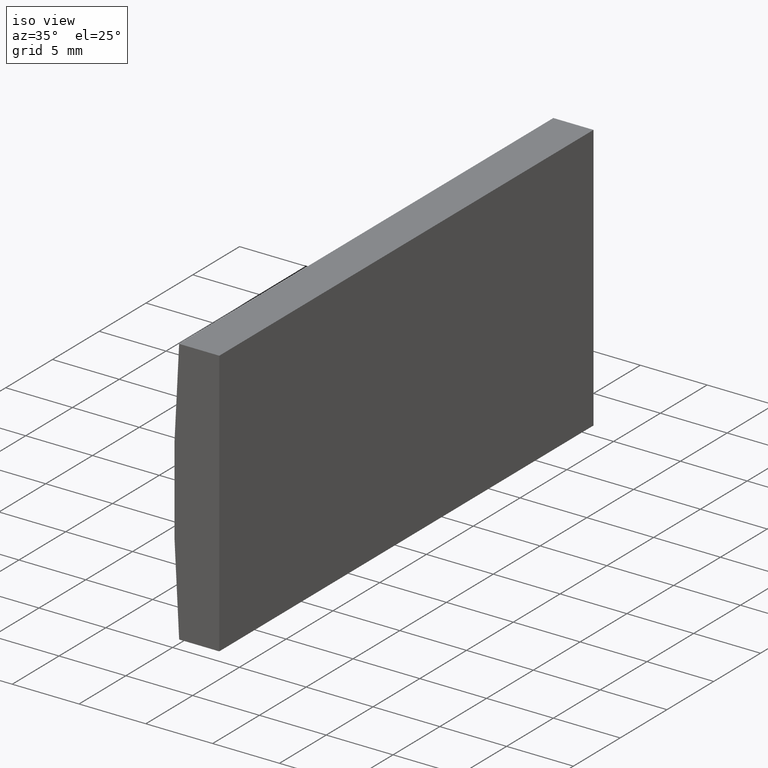
[diagram: clean part render]
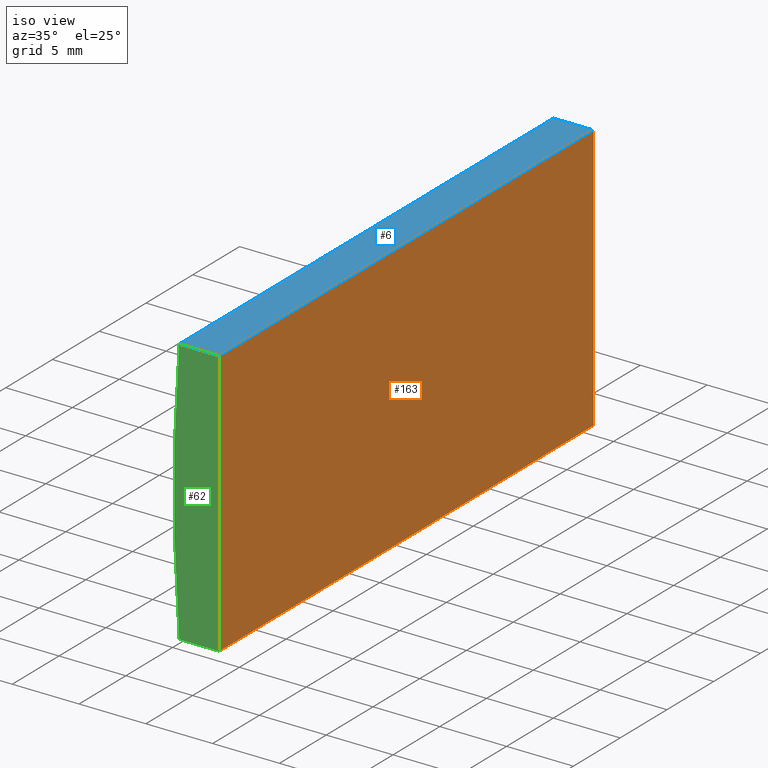
[diagram: same view with three faces highlighted in distinct colors, each labeled with its STEP entity id]
A machine part, iso view with three faces highlighted in distinct colors.
Their STEP definitions:

[orange] entity #163 — the highlighted planar face has unit normal (-1, 0, 0).
#11 = CARTESIAN_POINT ( 'NONE',  ( -121.5047956651487300, 40.00000000000000000, -9.999999999999985800 ) ) ;
#20 = VERTEX_POINT ( 'NONE', #109 ) ;
#23 = LINE ( 'NONE', #78, #187 ) ;
#46 = EDGE_LOOP ( 'NONE', ( #177, #82, #192, #158 ) ) ;
#51 = VERTEX_POINT ( 'NONE', #81 ) ;
#52 = CARTESIAN_POINT ( 'NONE',  ( -121.5047956651487300, 0.0000000000000000000, -9.999999999999985800 ) ) ;
#61 = VECTOR ( 'NONE', #183, 1000.000000000000000 ) ;
#65 = CARTESIAN_POINT ( 'NONE',  ( -121.5047956651487300, 40.00000000000000000, -9.999999999999985800 ) ) ;
#66 = VERTEX_POINT ( 'NONE', #52 ) ;
#72 = VECTOR ( 'NONE', #73, 1000.000000000000000 ) ;
#73 = DIRECTION ( 'NONE',  ( -0.0000000000000000000, -1.000000000000000000, -0.0000000000000000000 ) ) ;
#74 = PLANE ( 'NONE',  #160 ) ;
#76 = CARTESIAN_POINT ( 'NONE',  ( -121.5047956651487300, 0.0000000000000000000, -9.999999999999985800 ) ) ;
#78 = CARTESIAN_POINT ( 'NONE',  ( -121.5047956651487300, 40.00000000000000000, 10.00000000000000000 ) ) ;
#79 = VECTOR ( 'NONE', #99, 1000.000000000000000 ) ;
#81 = CARTESIAN_POINT ( 'NONE',  ( -121.5047956651487300, 40.00000000000000000, 10.00000000000000000 ) ) ;
#82 = ORIENTED_EDGE ( 'NONE', *, *, #98, .F. ) ;
#95 = VERTEX_POINT ( 'NONE', #65 ) ;
#98 = EDGE_CURVE ( 'NONE', #95, #66, #176, .T. ) ;
#99 = DIRECTION ( 'NONE',  ( -0.0000000000000000000, -0.0000000000000000000, -1.000000000000000000 ) ) ;
#100 = DIRECTION ( 'NONE',  ( 0.0000000000000000000, 0.0000000000000000000, 1.000000000000000000 ) ) ;
#106 = LINE ( 'NONE', #11, #79 ) ;
#109 = CARTESIAN_POINT ( 'NONE',  ( -121.5047956651487300, 0.0000000000000000000, 10.00000000000000000 ) ) ;
#122 = DIRECTION ( 'NONE',  ( -1.000000000000000000, 0.0000000000000000000, 0.0000000000000000000 ) ) ;
#126 = CARTESIAN_POINT ( 'NONE',  ( -121.5047956651487300, 40.00000000000000000, -9.999999999999985800 ) ) ;
#138 = EDGE_CURVE ( 'NONE', #51, #95, #106, .T. ) ;
#139 = CARTESIAN_POINT ( 'NONE',  ( -121.5047956651487300, 40.00000000000000000, -9.999999999999985800 ) ) ;
#140 = FACE_OUTER_BOUND ( 'NONE', #46, .T. ) ;
#142 = DIRECTION ( 'NONE',  ( -0.0000000000000000000, -1.000000000000000000, -0.0000000000000000000 ) ) ;
#158 = ORIENTED_EDGE ( 'NONE', *, *, #201, .T. ) ;
#160 = AXIS2_PLACEMENT_3D ( 'NONE', #139, #122, #100 ) ;
#162 = LINE ( 'NONE', #76, #61 ) ;
#163 = ADVANCED_FACE ( 'NONE', ( #140 ), #74, .F. ) ;
#169 = EDGE_CURVE ( 'NONE', #20, #66, #162, .T. ) ;
#176 = LINE ( 'NONE', #126, #72 ) ;
#177 = ORIENTED_EDGE ( 'NONE', *, *, #169, .T. ) ;
#183 = DIRECTION ( 'NONE',  ( -0.0000000000000000000, -0.0000000000000000000, -1.000000000000000000 ) ) ;
#187 = VECTOR ( 'NONE', #142, 1000.000000000000000 ) ;
#192 = ORIENTED_EDGE ( 'NONE', *, *, #138, .F. ) ;
#201 = EDGE_CURVE ( 'NONE', #51, #20, #23, .T. ) ;

[blue] entity #6 — the highlighted planar face has unit normal (0, 0, -1).
#4 = CARTESIAN_POINT ( 'NONE',  ( -124.5073678108264800, 0.0000000000000000000, 10.00000000000000000 ) ) ;
#5 = EDGE_LOOP ( 'NONE', ( #71, #97, #165, #143 ) ) ;
#6 = ADVANCED_FACE ( 'NONE', ( #111 ), #149, .F. ) ;
#9 = VERTEX_POINT ( 'NONE', #43 ) ;
#10 = LINE ( 'NONE', #4, #156 ) ;
#20 = VERTEX_POINT ( 'NONE', #109 ) ;
#23 = LINE ( 'NONE', #78, #187 ) ;
#36 = CARTESIAN_POINT ( 'NONE',  ( -124.5073678108264800, 40.00000000000000000, 10.00000000000000000 ) ) ;
#37 = CARTESIAN_POINT ( 'NONE',  ( -124.5073678108264800, 40.00000000000000000, 10.00000000000000000 ) ) ;
#43 = CARTESIAN_POINT ( 'NONE',  ( -124.5073678108264800, 0.0000000000000000000, 10.00000000000000000 ) ) ;
#45 = EDGE_CURVE ( 'NONE', #9, #20, #10, .T. ) ;
#51 = VERTEX_POINT ( 'NONE', #81 ) ;
#56 = DIRECTION ( 'NONE',  ( -0.0000000000000000000, -1.000000000000000000, -0.0000000000000000000 ) ) ;
#59 = DIRECTION ( 'NONE',  ( 0.0000000000000000000, 0.0000000000000000000, -1.000000000000000000 ) ) ;
#70 = LINE ( 'NONE', #37, #133 ) ;
#71 = ORIENTED_EDGE ( 'NONE', *, *, #45, .T. ) ;
#78 = CARTESIAN_POINT ( 'NONE',  ( -121.5047956651487300, 40.00000000000000000, 10.00000000000000000 ) ) ;
#81 = CARTESIAN_POINT ( 'NONE',  ( -121.5047956651487300, 40.00000000000000000, 10.00000000000000000 ) ) ;
#83 = DIRECTION ( 'NONE',  ( 1.000000000000000000, 0.0000000000000000000, 0.0000000000000000000 ) ) ;
#97 = ORIENTED_EDGE ( 'NONE', *, *, #201, .F. ) ;
#109 = CARTESIAN_POINT ( 'NONE',  ( -121.5047956651487300, 0.0000000000000000000, 10.00000000000000000 ) ) ;
#111 = FACE_OUTER_BOUND ( 'NONE', #5, .T. ) ;
#121 = EDGE_CURVE ( 'NONE', #175, #9, #70, .T. ) ;
#133 = VECTOR ( 'NONE', #56, 1000.000000000000000 ) ;
#142 = DIRECTION ( 'NONE',  ( -0.0000000000000000000, -1.000000000000000000, -0.0000000000000000000 ) ) ;
#143 = ORIENTED_EDGE ( 'NONE', *, *, #121, .T. ) ;
#144 = AXIS2_PLACEMENT_3D ( 'NONE', #174, #59, #199 ) ;
#149 = PLANE ( 'NONE',  #144 ) ;
#155 = CARTESIAN_POINT ( 'NONE',  ( -124.5073678108264800, 40.00000000000000000, 10.00000000000000000 ) ) ;
#156 = VECTOR ( 'NONE', #83, 1000.000000000000000 ) ;
#165 = ORIENTED_EDGE ( 'NONE', *, *, #178, .F. ) ;
#170 = LINE ( 'NONE', #155, #194 ) ;
#174 = CARTESIAN_POINT ( 'NONE',  ( -124.5073678108264800, 40.00000000000000000, 10.00000000000000000 ) ) ;
#175 = VERTEX_POINT ( 'NONE', #36 ) ;
#178 = EDGE_CURVE ( 'NONE', #175, #51, #170, .T. ) ;
#187 = VECTOR ( 'NONE', #142, 1000.000000000000000 ) ;
#191 = DIRECTION ( 'NONE',  ( 1.000000000000000000, 0.0000000000000000000, 0.0000000000000000000 ) ) ;
#194 = VECTOR ( 'NONE', #191, 1000.000000000000000 ) ;
#199 = DIRECTION ( 'NONE',  ( -1.000000000000000000, 0.0000000000000000000, -0.0000000000000000000 ) ) ;
#201 = EDGE_CURVE ( 'NONE', #51, #20, #23, .T. ) ;

[green] entity #62 — the highlighted planar face has unit normal (0, 1, 0).
#4 = CARTESIAN_POINT ( 'NONE',  ( -124.5073678108264800, 0.0000000000000000000, 10.00000000000000000 ) ) ;
#9 = VERTEX_POINT ( 'NONE', #43 ) ;
#10 = LINE ( 'NONE', #4, #156 ) ;
#14 = CARTESIAN_POINT ( 'NONE',  ( -124.5073678108264900, 0.0000000000000000000, -10.00000000000000000 ) ) ;
#19 = DIRECTION ( 'NONE',  ( 0.0000000000000000000, 1.000000000000000000, 0.0000000000000000000 ) ) ;
#20 = VERTEX_POINT ( 'NONE', #109 ) ;
#25 = CIRCLE ( 'NONE', #193, 129.2500000000000000 ) ;
#29 = CARTESIAN_POINT ( 'NONE',  ( -124.5073678108264900, 0.0000000000000000000, -10.00000000000000000 ) ) ;
#34 = EDGE_LOOP ( 'NONE', ( #93, #39, #136, #102 ) ) ;
#39 = ORIENTED_EDGE ( 'NONE', *, *, #154, .F. ) ;
#43 = CARTESIAN_POINT ( 'NONE',  ( -124.5073678108264800, 0.0000000000000000000, 10.00000000000000000 ) ) ;
#45 = EDGE_CURVE ( 'NONE', #9, #20, #10, .T. ) ;
#48 = DIRECTION ( 'NONE',  ( 0.0000000000000000000, -0.0000000000000000000, 1.000000000000000000 ) ) ;
#52 = CARTESIAN_POINT ( 'NONE',  ( -121.5047956651487300, 0.0000000000000000000, -9.999999999999985800 ) ) ;
#57 = PLANE ( 'NONE',  #151 ) ;
#61 = VECTOR ( 'NONE', #183, 1000.000000000000000 ) ;
#62 = ADVANCED_FACE ( 'NONE', ( #127 ), #57, .F. ) ;
#66 = VERTEX_POINT ( 'NONE', #52 ) ;
#76 = CARTESIAN_POINT ( 'NONE',  ( -121.5047956651487300, 0.0000000000000000000, -9.999999999999985800 ) ) ;
#83 = DIRECTION ( 'NONE',  ( 1.000000000000000000, 0.0000000000000000000, 0.0000000000000000000 ) ) ;
#87 = LINE ( 'NONE', #29, #145 ) ;
#93 = ORIENTED_EDGE ( 'NONE', *, *, #132, .F. ) ;
#102 = ORIENTED_EDGE ( 'NONE', *, *, #45, .F. ) ;
#109 = CARTESIAN_POINT ( 'NONE',  ( -121.5047956651487300, 0.0000000000000000000, 10.00000000000000000 ) ) ;
#127 = FACE_OUTER_BOUND ( 'NONE', #34, .T. ) ;
#132 = EDGE_CURVE ( 'NONE', #172, #9, #25, .T. ) ;
#136 = ORIENTED_EDGE ( 'NONE', *, *, #169, .F. ) ;
#145 = VECTOR ( 'NONE', #164, 1000.000000000000000 ) ;
#148 = CARTESIAN_POINT ( 'NONE',  ( 4.355204334851265500, 0.0000000000000000000, 4.286263797015675000E-017 ) ) ;
#151 = AXIS2_PLACEMENT_3D ( 'NONE', #148, #19, #48 ) ;
#154 = EDGE_CURVE ( 'NONE', #66, #172, #87, .T. ) ;
#156 = VECTOR ( 'NONE', #83, 1000.000000000000000 ) ;
#162 = LINE ( 'NONE', #76, #61 ) ;
#164 = DIRECTION ( 'NONE',  ( -1.000000000000000000, -0.0000000000000000000, -4.621966478904335600E-015 ) ) ;
#169 = EDGE_CURVE ( 'NONE', #20, #66, #162, .T. ) ;
#172 = VERTEX_POINT ( 'NONE', #14 ) ;
#179 = DIRECTION ( 'NONE',  ( 0.0000000000000000000, 0.0000000000000000000, 1.000000000000000000 ) ) ;
#183 = DIRECTION ( 'NONE',  ( -0.0000000000000000000, -0.0000000000000000000, -1.000000000000000000 ) ) ;
#184 = CARTESIAN_POINT ( 'NONE',  ( 4.355204334851265500, 0.0000000000000000000, 4.286263797015675000E-017 ) ) ;
#186 = DIRECTION ( 'NONE',  ( 0.0000000000000000000, 1.000000000000000000, 0.0000000000000000000 ) ) ;
#193 = AXIS2_PLACEMENT_3D ( 'NONE', #184, #186, #179 ) ;